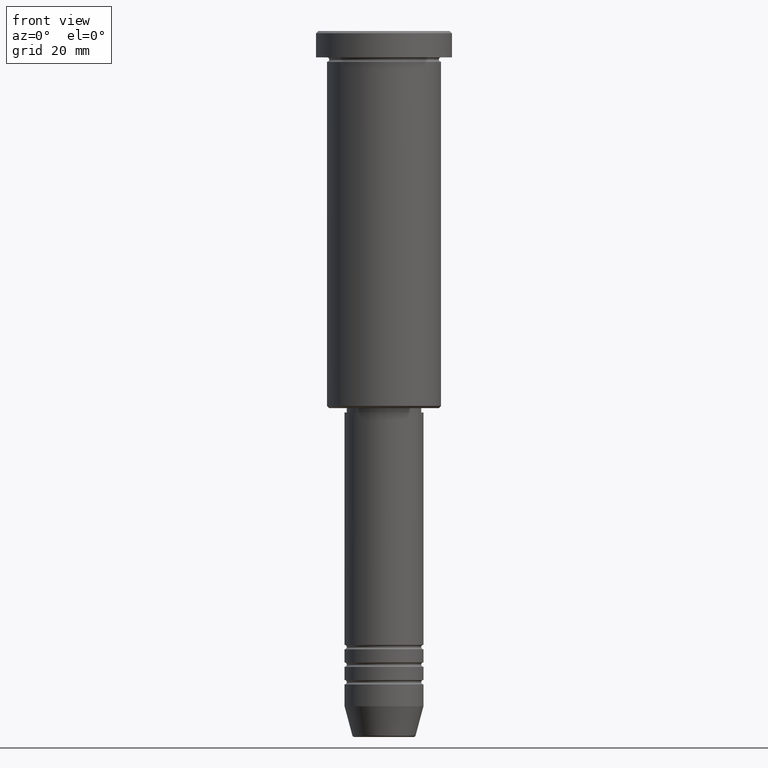
[diagram: clean part render]
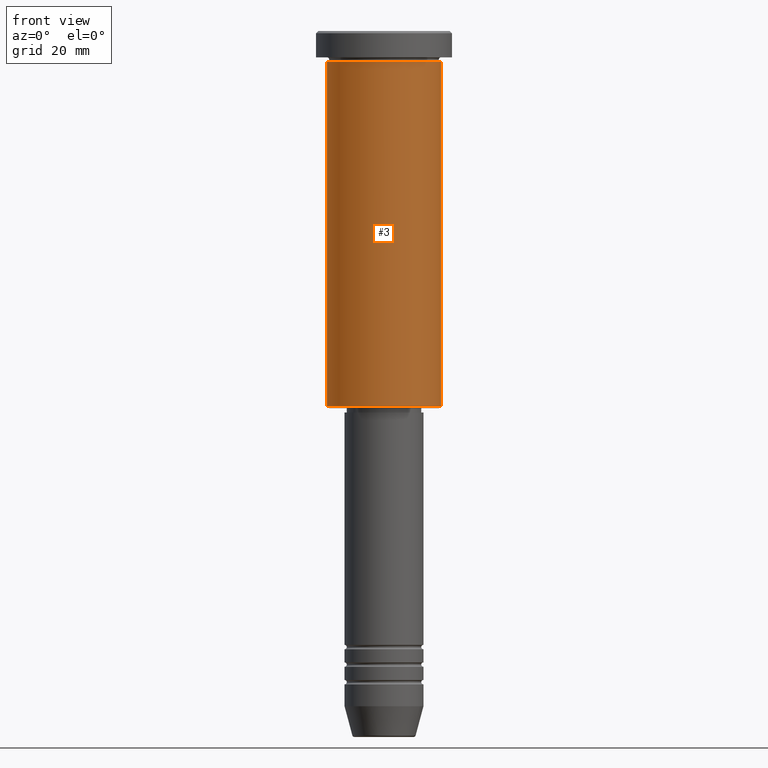
[diagram: same view with one face highlighted and labeled with its STEP entity id]
A machine part, front view. The second image highlights one B-rep face of the part: STEP entity #3.
In plain terms, the highlighted cylindrical surface (partial cylindrical patch) has radius 13 mm, axis along (-0, -0, 1).
Its self-contained STEP definition (entity closure, byte-faithful):
#1 = VERTEX_POINT ( 'NONE', #56 ) ;
#2 = CARTESIAN_POINT ( 'NONE',  ( 0.000000000000000000, 0.000000000000000000, -6.999999999999995559 ) ) ;
#3 = ADVANCED_FACE ( 'NONE', ( #139 ), #958, .T. ) ;
#9 = CIRCLE ( 'NONE', #181, 13.00000000000000178 ) ;
#56 = CARTESIAN_POINT ( 'NONE',  ( -13.00000000000000178, 1.592040838891559293E-15, -6.999999999999995559 ) ) ;
#81 = LINE ( 'NONE', #617, #334 ) ;
#139 = FACE_OUTER_BOUND ( 'NONE', #1118, .T. ) ;
#157 = DIRECTION ( 'NONE',  ( -1.000000000000000000, 0.000000000000000000, 0.000000000000000000 ) ) ;
#181 = AXIS2_PLACEMENT_3D ( 'NONE', #2, #1099, #202 ) ;
#202 = DIRECTION ( 'NONE',  ( 1.000000000000000000, 0.000000000000000000, 0.000000000000000000 ) ) ;
#204 = CARTESIAN_POINT ( 'NONE',  ( 13.00000000000000178, 0.000000000000000000, -6.999999999999995559 ) ) ;
#259 = VERTEX_POINT ( 'NONE', #204 ) ;
#292 = ORIENTED_EDGE ( 'NONE', *, *, #666, .F. ) ;
#294 = CARTESIAN_POINT ( 'NONE',  ( -13.00000000000000178, 1.592040838891559293E-15, 0.000000000000000000 ) ) ;
#326 = DIRECTION ( 'NONE',  ( 1.000000000000000000, 0.000000000000000000, 0.000000000000000000 ) ) ;
#334 = VECTOR ( 'NONE', #701, 1000.000000000000000 ) ;
#347 = DIRECTION ( 'NONE',  ( -0.000000000000000000, -0.000000000000000000, 1.000000000000000000 ) ) ;
#448 = VERTEX_POINT ( 'NONE', #1064 ) ;
#476 = DIRECTION ( 'NONE',  ( -0.000000000000000000, -0.000000000000000000, 1.000000000000000000 ) ) ;
#518 = ORIENTED_EDGE ( 'NONE', *, *, #772, .F. ) ;
#531 = CARTESIAN_POINT ( 'NONE',  ( -13.00000000000000178, 1.592040838891559293E-15, -85.49999999999992895 ) ) ;
#576 = VERTEX_POINT ( 'NONE', #531 ) ;
#617 = CARTESIAN_POINT ( 'NONE',  ( 13.00000000000000178, 0.000000000000000000, 0.000000000000000000 ) ) ;
#656 = ORIENTED_EDGE ( 'NONE', *, *, #1024, .T. ) ;
#664 = ORIENTED_EDGE ( 'NONE', *, *, #975, .T. ) ;
#666 = EDGE_CURVE ( 'NONE', #1, #259, #9, .T. ) ;
#688 = AXIS2_PLACEMENT_3D ( 'NONE', #1138, #868, #326 ) ;
#701 = DIRECTION ( 'NONE',  ( -0.000000000000000000, -0.000000000000000000, 1.000000000000000000 ) ) ;
#744 = CIRCLE ( 'NONE', #916, 13.00000000000000178 ) ;
#772 = EDGE_CURVE ( 'NONE', #576, #1, #1119, .T. ) ;
#810 = CARTESIAN_POINT ( 'NONE',  ( 0.000000000000000000, 0.000000000000000000, -85.49999999999992895 ) ) ;
#868 = DIRECTION ( 'NONE',  ( -0.000000000000000000, -0.000000000000000000, 1.000000000000000000 ) ) ;
#916 = AXIS2_PLACEMENT_3D ( 'NONE', #810, #347, #157 ) ;
#958 = CYLINDRICAL_SURFACE ( 'NONE', #688, 13.00000000000000178 ) ;
#970 = VECTOR ( 'NONE', #476, 1000.000000000000000 ) ;
#975 = EDGE_CURVE ( 'NONE', #448, #259, #81, .T. ) ;
#1024 = EDGE_CURVE ( 'NONE', #576, #448, #744, .T. ) ;
#1064 = CARTESIAN_POINT ( 'NONE',  ( 13.00000000000000178, 0.000000000000000000, -85.49999999999992895 ) ) ;
#1099 = DIRECTION ( 'NONE',  ( -0.000000000000000000, -0.000000000000000000, 1.000000000000000000 ) ) ;
#1118 = EDGE_LOOP ( 'NONE', ( #518, #656, #664, #292 ) ) ;
#1119 = LINE ( 'NONE', #294, #970 ) ;
#1138 = CARTESIAN_POINT ( 'NONE',  ( 0.000000000000000000, 0.000000000000000000, 0.000000000000000000 ) ) ;